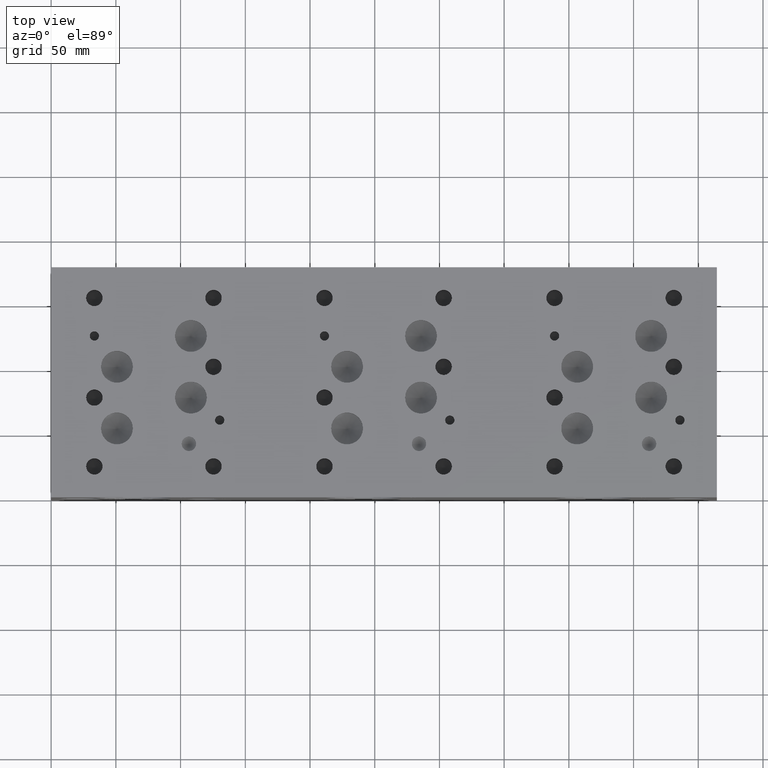
[diagram: clean part render]
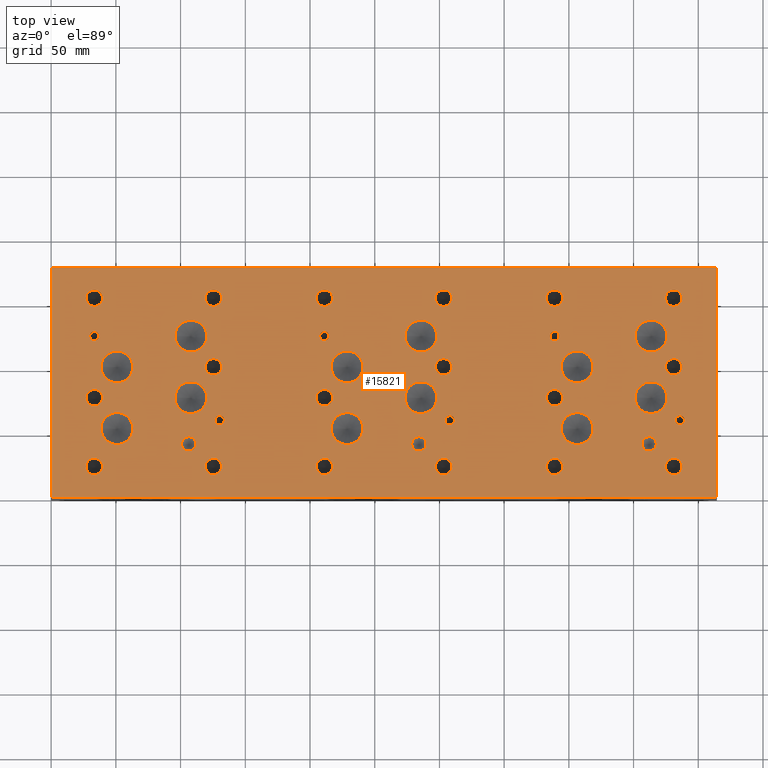
[diagram: same view with one face highlighted and labeled with its STEP entity id]
A machine part, top view. The second image highlights one B-rep face of the part: STEP entity #15821.
In plain terms, the highlighted planar face has unit normal (0, 0, 1).
Its self-contained STEP definition (entity closure, byte-faithful):
#507=CIRCLE('',#16639,3.5687);
#508=CIRCLE('',#16640,3.5687);
#511=CIRCLE('',#16645,3.5687);
#512=CIRCLE('',#16646,3.5687);
#515=CIRCLE('',#16651,3.5687);
#516=CIRCLE('',#16652,3.5687);
#519=CIRCLE('',#16657,3.5687);
#520=CIRCLE('',#16658,3.5687);
#526=CIRCLE('',#16667,6.35);
#527=CIRCLE('',#16668,6.35);
#533=CIRCLE('',#16678,6.35);
#534=CIRCLE('',#16679,6.35);
#540=CIRCLE('',#16689,6.35);
#541=CIRCLE('',#16690,6.35);
#547=CIRCLE('',#16700,6.35);
#548=CIRCLE('',#16701,6.35);
#554=CIRCLE('',#16711,6.35);
#555=CIRCLE('',#16712,6.35);
#561=CIRCLE('',#16722,6.35);
#562=CIRCLE('',#16723,6.35);
#568=CIRCLE('',#16733,6.35);
#569=CIRCLE('',#16734,6.35);
#575=CIRCLE('',#16744,6.35);
#576=CIRCLE('',#16745,6.35);
#582=CIRCLE('',#16755,6.35);
#583=CIRCLE('',#16756,6.35);
#589=CIRCLE('',#16766,6.35);
#590=CIRCLE('',#16767,6.35);
#596=CIRCLE('',#16777,6.35);
#597=CIRCLE('',#16778,6.35);
#603=CIRCLE('',#16788,6.35);
#604=CIRCLE('',#16789,6.35);
#607=CIRCLE('',#16795,5.5626);
#608=CIRCLE('',#16796,5.5626);
#611=CIRCLE('',#16801,5.5626);
#612=CIRCLE('',#16802,5.5626);
#615=CIRCLE('',#16807,5.5626);
#616=CIRCLE('',#16808,5.5626);
#619=CIRCLE('',#16813,12.3063);
#620=CIRCLE('',#16814,12.3063);
#623=CIRCLE('',#16819,12.3063);
#624=CIRCLE('',#16820,12.3063);
#627=CIRCLE('',#16825,12.3063);
#628=CIRCLE('',#16826,12.3063);
#631=CIRCLE('',#16831,12.3063);
#632=CIRCLE('',#16832,12.3063);
#635=CIRCLE('',#16837,12.3063);
#636=CIRCLE('',#16838,12.3063);
#639=CIRCLE('',#16843,12.3063);
#640=CIRCLE('',#16844,12.3063);
#643=CIRCLE('',#16849,12.3063);
#644=CIRCLE('',#16850,12.3063);
#647=CIRCLE('',#16855,12.3063);
#648=CIRCLE('',#16856,12.3063);
#651=CIRCLE('',#16861,12.3063);
#652=CIRCLE('',#16862,12.3063);
#655=CIRCLE('',#16867,12.3063);
#656=CIRCLE('',#16868,12.3063);
#659=CIRCLE('',#16873,12.3063);
#660=CIRCLE('',#16874,12.3063);
#663=CIRCLE('',#16879,12.3063);
#664=CIRCLE('',#16880,12.3063);
#667=CIRCLE('',#16885,3.5687);
#668=CIRCLE('',#16886,3.5687);
#671=CIRCLE('',#16891,3.5687);
#672=CIRCLE('',#16892,3.5687);
#678=CIRCLE('',#16901,6.35);
#679=CIRCLE('',#16902,6.35);
#685=CIRCLE('',#16912,6.35);
#686=CIRCLE('',#16913,6.35);
#692=CIRCLE('',#16923,6.35);
#693=CIRCLE('',#16924,6.35);
#699=CIRCLE('',#16934,6.35);
#700=CIRCLE('',#16935,6.35);
#706=CIRCLE('',#16945,6.35);
#707=CIRCLE('',#16946,6.35);
#713=CIRCLE('',#16956,6.35);
#714=CIRCLE('',#16957,6.35);
#834=FACE_BOUND('',#3070,.T.);
#835=FACE_BOUND('',#3071,.T.);
#836=FACE_BOUND('',#3072,.T.);
#837=FACE_BOUND('',#3073,.T.);
#838=FACE_BOUND('',#3074,.T.);
#839=FACE_BOUND('',#3075,.T.);
#840=FACE_BOUND('',#3076,.T.);
#841=FACE_BOUND('',#3077,.T.);
#842=FACE_BOUND('',#3078,.T.);
#843=FACE_BOUND('',#3079,.T.);
#844=FACE_BOUND('',#3080,.T.);
#845=FACE_BOUND('',#3081,.T.);
#846=FACE_BOUND('',#3082,.T.);
#847=FACE_BOUND('',#3083,.T.);
#848=FACE_BOUND('',#3084,.T.);
#849=FACE_BOUND('',#3085,.T.);
#850=FACE_BOUND('',#3086,.T.);
#851=FACE_BOUND('',#3087,.T.);
#852=FACE_BOUND('',#3088,.T.);
#853=FACE_BOUND('',#3089,.T.);
#854=FACE_BOUND('',#3090,.T.);
#855=FACE_BOUND('',#3091,.T.);
#856=FACE_BOUND('',#3092,.T.);
#857=FACE_BOUND('',#3093,.T.);
#858=FACE_BOUND('',#3094,.T.);
#859=FACE_BOUND('',#3095,.T.);
#860=FACE_BOUND('',#3096,.T.);
#861=FACE_BOUND('',#3097,.T.);
#862=FACE_BOUND('',#3098,.T.);
#863=FACE_BOUND('',#3099,.T.);
#864=FACE_BOUND('',#3100,.T.);
#865=FACE_BOUND('',#3101,.T.);
#866=FACE_BOUND('',#3102,.T.);
#867=FACE_BOUND('',#3103,.T.);
#868=FACE_BOUND('',#3104,.T.);
#869=FACE_BOUND('',#3105,.T.);
#870=FACE_BOUND('',#3106,.T.);
#871=FACE_BOUND('',#3107,.T.);
#872=FACE_BOUND('',#3108,.T.);
#1298=PLANE('',#16963);
#2124=FACE_OUTER_BOUND('',#3069,.T.);
#3069=EDGE_LOOP('',(#14210,#14211,#14212,#14213));
#3070=EDGE_LOOP('',(#14214,#14215));
#3071=EDGE_LOOP('',(#14216,#14217));
#3072=EDGE_LOOP('',(#14218,#14219));
#3073=EDGE_LOOP('',(#14220,#14221));
#3074=EDGE_LOOP('',(#14222,#14223));
#3075=EDGE_LOOP('',(#14224,#14225));
#3076=EDGE_LOOP('',(#14226,#14227));
#3077=EDGE_LOOP('',(#14228,#14229));
#3078=EDGE_LOOP('',(#14230,#14231));
#3079=EDGE_LOOP('',(#14232,#14233));
#3080=EDGE_LOOP('',(#14234,#14235));
#3081=EDGE_LOOP('',(#14236,#14237));
#3082=EDGE_LOOP('',(#14238,#14239));
#3083=EDGE_LOOP('',(#14240,#14241));
#3084=EDGE_LOOP('',(#14242,#14243));
#3085=EDGE_LOOP('',(#14244,#14245));
#3086=EDGE_LOOP('',(#14246,#14247));
#3087=EDGE_LOOP('',(#14248,#14249));
#3088=EDGE_LOOP('',(#14250,#14251));
#3089=EDGE_LOOP('',(#14252,#14253));
#3090=EDGE_LOOP('',(#14254,#14255));
#3091=EDGE_LOOP('',(#14256,#14257));
#3092=EDGE_LOOP('',(#14258,#14259));
#3093=EDGE_LOOP('',(#14260,#14261));
#3094=EDGE_LOOP('',(#14262,#14263));
#3095=EDGE_LOOP('',(#14264,#14265));
#3096=EDGE_LOOP('',(#14266,#14267));
#3097=EDGE_LOOP('',(#14268,#14269));
#3098=EDGE_LOOP('',(#14270,#14271));
#3099=EDGE_LOOP('',(#14272,#14273));
#3100=EDGE_LOOP('',(#14274,#14275));
#3101=EDGE_LOOP('',(#14276,#14277));
#3102=EDGE_LOOP('',(#14278,#14279));
#3103=EDGE_LOOP('',(#14280,#14281));
#3104=EDGE_LOOP('',(#14282,#14283));
#3105=EDGE_LOOP('',(#14284,#14285));
#3106=EDGE_LOOP('',(#14286,#14287));
#3107=EDGE_LOOP('',(#14288,#14289));
#3108=EDGE_LOOP('',(#14290,#14291));
#3144=LINE('',#20800,#4512);
#3204=LINE('',#21075,#4572);
#3520=LINE('',#23330,#4888);
#4477=LINE('',#27393,#5845);
#4512=VECTOR('',#17021,10.);
#4572=VECTOR('',#17135,10.);
#4888=VECTOR('',#17637,10.);
#5845=VECTOR('',#20582,10.);
#6228=VERTEX_POINT('',#20797);
#6229=VERTEX_POINT('',#20799);
#6288=VERTEX_POINT('',#21072);
#6289=VERTEX_POINT('',#21074);
#7474=VERTEX_POINT('',#26729);
#7475=VERTEX_POINT('',#26730);
#7479=VERTEX_POINT('',#26742);
#7480=VERTEX_POINT('',#26743);
#7484=VERTEX_POINT('',#26755);
#7485=VERTEX_POINT('',#26756);
#7489=VERTEX_POINT('',#26768);
#7490=VERTEX_POINT('',#26769);
#7497=VERTEX_POINT('',#26788);
#7498=VERTEX_POINT('',#26789);
#7505=VERTEX_POINT('',#26810);
#7506=VERTEX_POINT('',#26811);
#7513=VERTEX_POINT('',#26832);
#7514=VERTEX_POINT('',#26833);
#7521=VERTEX_POINT('',#26854);
#7522=VERTEX_POINT('',#26855);
#7529=VERTEX_POINT('',#26876);
#7530=VERTEX_POINT('',#26877);
#7537=VERTEX_POINT('',#26898);
#7538=VERTEX_POINT('',#26899);
#7545=VERTEX_POINT('',#26920);
#7546=VERTEX_POINT('',#26921);
#7553=VERTEX_POINT('',#26942);
#7554=VERTEX_POINT('',#26943);
#7561=VERTEX_POINT('',#26964);
#7562=VERTEX_POINT('',#26965);
#7569=VERTEX_POINT('',#26986);
#7570=VERTEX_POINT('',#26987);
#7577=VERTEX_POINT('',#27008);
#7578=VERTEX_POINT('',#27009);
#7585=VERTEX_POINT('',#27030);
#7586=VERTEX_POINT('',#27031);
#7590=VERTEX_POINT('',#27045);
#7591=VERTEX_POINT('',#27046);
#7595=VERTEX_POINT('',#27058);
#7596=VERTEX_POINT('',#27059);
#7600=VERTEX_POINT('',#27071);
#7601=VERTEX_POINT('',#27072);
#7605=VERTEX_POINT('',#27084);
#7606=VERTEX_POINT('',#27085);
#7610=VERTEX_POINT('',#27097);
#7611=VERTEX_POINT('',#27098);
#7615=VERTEX_POINT('',#27110);
#7616=VERTEX_POINT('',#27111);
#7620=VERTEX_POINT('',#27123);
#7621=VERTEX_POINT('',#27124);
#7625=VERTEX_POINT('',#27136);
#7626=VERTEX_POINT('',#27137);
#7630=VERTEX_POINT('',#27149);
#7631=VERTEX_POINT('',#27150);
#7635=VERTEX_POINT('',#27162);
#7636=VERTEX_POINT('',#27163);
#7640=VERTEX_POINT('',#27175);
#7641=VERTEX_POINT('',#27176);
#7645=VERTEX_POINT('',#27188);
#7646=VERTEX_POINT('',#27189);
#7650=VERTEX_POINT('',#27201);
#7651=VERTEX_POINT('',#27202);
#7655=VERTEX_POINT('',#27214);
#7656=VERTEX_POINT('',#27215);
#7660=VERTEX_POINT('',#27227);
#7661=VERTEX_POINT('',#27228);
#7665=VERTEX_POINT('',#27240);
#7666=VERTEX_POINT('',#27241);
#7670=VERTEX_POINT('',#27253);
#7671=VERTEX_POINT('',#27254);
#7678=VERTEX_POINT('',#27273);
#7679=VERTEX_POINT('',#27274);
#7686=VERTEX_POINT('',#27295);
#7687=VERTEX_POINT('',#27296);
#7694=VERTEX_POINT('',#27317);
#7695=VERTEX_POINT('',#27318);
#7702=VERTEX_POINT('',#27339);
#7703=VERTEX_POINT('',#27340);
#7710=VERTEX_POINT('',#27361);
#7711=VERTEX_POINT('',#27362);
#7718=VERTEX_POINT('',#27383);
#7719=VERTEX_POINT('',#27384);
#7770=EDGE_CURVE('',#6229,#6228,#3144,.T.);
#7854=EDGE_CURVE('',#6289,#6288,#3204,.T.);
#8366=EDGE_CURVE('',#6288,#6229,#3520,.T.);
#9607=EDGE_CURVE('',#7474,#7475,#507,.T.);
#9608=EDGE_CURVE('',#7475,#7474,#508,.T.);
#9613=EDGE_CURVE('',#7479,#7480,#511,.T.);
#9614=EDGE_CURVE('',#7480,#7479,#512,.T.);
#9619=EDGE_CURVE('',#7484,#7485,#515,.T.);
#9620=EDGE_CURVE('',#7485,#7484,#516,.T.);
#9625=EDGE_CURVE('',#7489,#7490,#519,.T.);
#9626=EDGE_CURVE('',#7490,#7489,#520,.T.);
#9634=EDGE_CURVE('',#7497,#7498,#526,.T.);
#9635=EDGE_CURVE('',#7498,#7497,#527,.T.);
#9644=EDGE_CURVE('',#7505,#7506,#533,.T.);
#9645=EDGE_CURVE('',#7506,#7505,#534,.T.);
#9654=EDGE_CURVE('',#7513,#7514,#540,.T.);
#9655=EDGE_CURVE('',#7514,#7513,#541,.T.);
#9664=EDGE_CURVE('',#7521,#7522,#547,.T.);
#9665=EDGE_CURVE('',#7522,#7521,#548,.T.);
#9674=EDGE_CURVE('',#7529,#7530,#554,.T.);
#9675=EDGE_CURVE('',#7530,#7529,#555,.T.);
#9684=EDGE_CURVE('',#7537,#7538,#561,.T.);
#9685=EDGE_CURVE('',#7538,#7537,#562,.T.);
#9694=EDGE_CURVE('',#7545,#7546,#568,.T.);
#9695=EDGE_CURVE('',#7546,#7545,#569,.T.);
#9704=EDGE_CURVE('',#7553,#7554,#575,.T.);
#9705=EDGE_CURVE('',#7554,#7553,#576,.T.);
#9714=EDGE_CURVE('',#7561,#7562,#582,.T.);
#9715=EDGE_CURVE('',#7562,#7561,#583,.T.);
#9724=EDGE_CURVE('',#7569,#7570,#589,.T.);
#9725=EDGE_CURVE('',#7570,#7569,#590,.T.);
#9734=EDGE_CURVE('',#7577,#7578,#596,.T.);
#9735=EDGE_CURVE('',#7578,#7577,#597,.T.);
#9744=EDGE_CURVE('',#7585,#7586,#603,.T.);
#9745=EDGE_CURVE('',#7586,#7585,#604,.T.);
#9751=EDGE_CURVE('',#7590,#7591,#607,.T.);
#9752=EDGE_CURVE('',#7591,#7590,#608,.T.);
#9757=EDGE_CURVE('',#7595,#7596,#611,.T.);
#9758=EDGE_CURVE('',#7596,#7595,#612,.T.);
#9763=EDGE_CURVE('',#7600,#7601,#615,.T.);
#9764=EDGE_CURVE('',#7601,#7600,#616,.T.);
#9769=EDGE_CURVE('',#7605,#7606,#619,.T.);
#9770=EDGE_CURVE('',#7606,#7605,#620,.T.);
#9775=EDGE_CURVE('',#7610,#7611,#623,.T.);
#9776=EDGE_CURVE('',#7611,#7610,#624,.T.);
#9781=EDGE_CURVE('',#7615,#7616,#627,.T.);
#9782=EDGE_CURVE('',#7616,#7615,#628,.T.);
#9787=EDGE_CURVE('',#7620,#7621,#631,.T.);
#9788=EDGE_CURVE('',#7621,#7620,#632,.T.);
#9793=EDGE_CURVE('',#7625,#7626,#635,.T.);
#9794=EDGE_CURVE('',#7626,#7625,#636,.T.);
#9799=EDGE_CURVE('',#7630,#7631,#639,.T.);
#9800=EDGE_CURVE('',#7631,#7630,#640,.T.);
#9805=EDGE_CURVE('',#7635,#7636,#643,.T.);
#9806=EDGE_CURVE('',#7636,#7635,#644,.T.);
#9811=EDGE_CURVE('',#7640,#7641,#647,.T.);
#9812=EDGE_CURVE('',#7641,#7640,#648,.T.);
#9817=EDGE_CURVE('',#7645,#7646,#651,.T.);
#9818=EDGE_CURVE('',#7646,#7645,#652,.T.);
#9823=EDGE_CURVE('',#7650,#7651,#655,.T.);
#9824=EDGE_CURVE('',#7651,#7650,#656,.T.);
#9829=EDGE_CURVE('',#7655,#7656,#659,.T.);
#9830=EDGE_CURVE('',#7656,#7655,#660,.T.);
#9835=EDGE_CURVE('',#7660,#7661,#663,.T.);
#9836=EDGE_CURVE('',#7661,#7660,#664,.T.);
#9841=EDGE_CURVE('',#7665,#7666,#667,.T.);
#9842=EDGE_CURVE('',#7666,#7665,#668,.T.);
#9847=EDGE_CURVE('',#7670,#7671,#671,.T.);
#9848=EDGE_CURVE('',#7671,#7670,#672,.T.);
#9856=EDGE_CURVE('',#7678,#7679,#678,.T.);
#9857=EDGE_CURVE('',#7679,#7678,#679,.T.);
#9866=EDGE_CURVE('',#7686,#7687,#685,.T.);
#9867=EDGE_CURVE('',#7687,#7686,#686,.T.);
#9876=EDGE_CURVE('',#7694,#7695,#692,.T.);
#9877=EDGE_CURVE('',#7695,#7694,#693,.T.);
#9886=EDGE_CURVE('',#7702,#7703,#699,.T.);
#9887=EDGE_CURVE('',#7703,#7702,#700,.T.);
#9896=EDGE_CURVE('',#7710,#7711,#706,.T.);
#9897=EDGE_CURVE('',#7711,#7710,#707,.T.);
#9906=EDGE_CURVE('',#7718,#7719,#713,.T.);
#9907=EDGE_CURVE('',#7719,#7718,#714,.T.);
#9911=EDGE_CURVE('',#6228,#6289,#4477,.T.);
#14210=ORIENTED_EDGE('',*,*,#8366,.T.);
#14211=ORIENTED_EDGE('',*,*,#7770,.T.);
#14212=ORIENTED_EDGE('',*,*,#9911,.T.);
#14213=ORIENTED_EDGE('',*,*,#7854,.T.);
#14214=ORIENTED_EDGE('',*,*,#9607,.T.);
#14215=ORIENTED_EDGE('',*,*,#9608,.T.);
#14216=ORIENTED_EDGE('',*,*,#9613,.T.);
#14217=ORIENTED_EDGE('',*,*,#9614,.T.);
#14218=ORIENTED_EDGE('',*,*,#9619,.T.);
#14219=ORIENTED_EDGE('',*,*,#9620,.T.);
#14220=ORIENTED_EDGE('',*,*,#9625,.T.);
#14221=ORIENTED_EDGE('',*,*,#9626,.T.);
#14222=ORIENTED_EDGE('',*,*,#9634,.T.);
#14223=ORIENTED_EDGE('',*,*,#9635,.T.);
#14224=ORIENTED_EDGE('',*,*,#9644,.T.);
#14225=ORIENTED_EDGE('',*,*,#9645,.T.);
#14226=ORIENTED_EDGE('',*,*,#9654,.T.);
#14227=ORIENTED_EDGE('',*,*,#9655,.T.);
#14228=ORIENTED_EDGE('',*,*,#9664,.T.);
#14229=ORIENTED_EDGE('',*,*,#9665,.T.);
#14230=ORIENTED_EDGE('',*,*,#9674,.T.);
#14231=ORIENTED_EDGE('',*,*,#9675,.T.);
#14232=ORIENTED_EDGE('',*,*,#9684,.T.);
#14233=ORIENTED_EDGE('',*,*,#9685,.T.);
#14234=ORIENTED_EDGE('',*,*,#9694,.T.);
#14235=ORIENTED_EDGE('',*,*,#9695,.T.);
#14236=ORIENTED_EDGE('',*,*,#9704,.T.);
#14237=ORIENTED_EDGE('',*,*,#9705,.T.);
#14238=ORIENTED_EDGE('',*,*,#9714,.T.);
#14239=ORIENTED_EDGE('',*,*,#9715,.T.);
#14240=ORIENTED_EDGE('',*,*,#9724,.T.);
#14241=ORIENTED_EDGE('',*,*,#9725,.T.);
#14242=ORIENTED_EDGE('',*,*,#9734,.T.);
#14243=ORIENTED_EDGE('',*,*,#9735,.T.);
#14244=ORIENTED_EDGE('',*,*,#9744,.T.);
#14245=ORIENTED_EDGE('',*,*,#9745,.T.);
#14246=ORIENTED_EDGE('',*,*,#9751,.T.);
#14247=ORIENTED_EDGE('',*,*,#9752,.T.);
#14248=ORIENTED_EDGE('',*,*,#9757,.T.);
#14249=ORIENTED_EDGE('',*,*,#9758,.T.);
#14250=ORIENTED_EDGE('',*,*,#9763,.T.);
#14251=ORIENTED_EDGE('',*,*,#9764,.T.);
#14252=ORIENTED_EDGE('',*,*,#9769,.T.);
#14253=ORIENTED_EDGE('',*,*,#9770,.T.);
#14254=ORIENTED_EDGE('',*,*,#9775,.T.);
#14255=ORIENTED_EDGE('',*,*,#9776,.T.);
#14256=ORIENTED_EDGE('',*,*,#9781,.T.);
#14257=ORIENTED_EDGE('',*,*,#9782,.T.);
#14258=ORIENTED_EDGE('',*,*,#9787,.T.);
#14259=ORIENTED_EDGE('',*,*,#9788,.T.);
#14260=ORIENTED_EDGE('',*,*,#9793,.T.);
#14261=ORIENTED_EDGE('',*,*,#9794,.T.);
#14262=ORIENTED_EDGE('',*,*,#9799,.T.);
#14263=ORIENTED_EDGE('',*,*,#9800,.T.);
#14264=ORIENTED_EDGE('',*,*,#9805,.T.);
#14265=ORIENTED_EDGE('',*,*,#9806,.T.);
#14266=ORIENTED_EDGE('',*,*,#9811,.T.);
#14267=ORIENTED_EDGE('',*,*,#9812,.T.);
#14268=ORIENTED_EDGE('',*,*,#9817,.T.);
#14269=ORIENTED_EDGE('',*,*,#9818,.T.);
#14270=ORIENTED_EDGE('',*,*,#9823,.T.);
#14271=ORIENTED_EDGE('',*,*,#9824,.T.);
#14272=ORIENTED_EDGE('',*,*,#9829,.T.);
#14273=ORIENTED_EDGE('',*,*,#9830,.T.);
#14274=ORIENTED_EDGE('',*,*,#9835,.T.);
#14275=ORIENTED_EDGE('',*,*,#9836,.T.);
#14276=ORIENTED_EDGE('',*,*,#9841,.T.);
#14277=ORIENTED_EDGE('',*,*,#9842,.T.);
#14278=ORIENTED_EDGE('',*,*,#9847,.T.);
#14279=ORIENTED_EDGE('',*,*,#9848,.T.);
#14280=ORIENTED_EDGE('',*,*,#9856,.T.);
#14281=ORIENTED_EDGE('',*,*,#9857,.T.);
#14282=ORIENTED_EDGE('',*,*,#9866,.T.);
#14283=ORIENTED_EDGE('',*,*,#9867,.T.);
#14284=ORIENTED_EDGE('',*,*,#9876,.T.);
#14285=ORIENTED_EDGE('',*,*,#9877,.T.);
#14286=ORIENTED_EDGE('',*,*,#9886,.T.);
#14287=ORIENTED_EDGE('',*,*,#9887,.T.);
#14288=ORIENTED_EDGE('',*,*,#9896,.T.);
#14289=ORIENTED_EDGE('',*,*,#9897,.T.);
#14290=ORIENTED_EDGE('',*,*,#9906,.T.);
#14291=ORIENTED_EDGE('',*,*,#9907,.T.);
#15821=ADVANCED_FACE('',(#2124,#834,#835,#836,#837,#838,#839,#840,#841,
#842,#843,#844,#845,#846,#847,#848,#849,#850,#851,#852,#853,#854,#855,#856,
#857,#858,#859,#860,#861,#862,#863,#864,#865,#866,#867,#868,#869,#870,#871,
#872),#1298,.T.);
#16639=AXIS2_PLACEMENT_3D('',#26731,#19842,#19843);
#16640=AXIS2_PLACEMENT_3D('',#26732,#19844,#19845);
#16645=AXIS2_PLACEMENT_3D('',#26744,#19856,#19857);
#16646=AXIS2_PLACEMENT_3D('',#26745,#19858,#19859);
#16651=AXIS2_PLACEMENT_3D('',#26757,#19870,#19871);
#16652=AXIS2_PLACEMENT_3D('',#26758,#19872,#19873);
#16657=AXIS2_PLACEMENT_3D('',#26770,#19884,#19885);
#16658=AXIS2_PLACEMENT_3D('',#26771,#19886,#19887);
#16667=AXIS2_PLACEMENT_3D('',#26790,#19906,#19907);
#16668=AXIS2_PLACEMENT_3D('',#26791,#19908,#19909);
#16678=AXIS2_PLACEMENT_3D('',#26812,#19931,#19932);
#16679=AXIS2_PLACEMENT_3D('',#26813,#19933,#19934);
#16689=AXIS2_PLACEMENT_3D('',#26834,#19956,#19957);
#16690=AXIS2_PLACEMENT_3D('',#26835,#19958,#19959);
#16700=AXIS2_PLACEMENT_3D('',#26856,#19981,#19982);
#16701=AXIS2_PLACEMENT_3D('',#26857,#19983,#19984);
#16711=AXIS2_PLACEMENT_3D('',#26878,#20006,#20007);
#16712=AXIS2_PLACEMENT_3D('',#26879,#20008,#20009);
#16722=AXIS2_PLACEMENT_3D('',#26900,#20031,#20032);
#16723=AXIS2_PLACEMENT_3D('',#26901,#20033,#20034);
#16733=AXIS2_PLACEMENT_3D('',#26922,#20056,#20057);
#16734=AXIS2_PLACEMENT_3D('',#26923,#20058,#20059);
#16744=AXIS2_PLACEMENT_3D('',#26944,#20081,#20082);
#16745=AXIS2_PLACEMENT_3D('',#26945,#20083,#20084);
#16755=AXIS2_PLACEMENT_3D('',#26966,#20106,#20107);
#16756=AXIS2_PLACEMENT_3D('',#26967,#20108,#20109);
#16766=AXIS2_PLACEMENT_3D('',#26988,#20131,#20132);
#16767=AXIS2_PLACEMENT_3D('',#26989,#20133,#20134);
#16777=AXIS2_PLACEMENT_3D('',#27010,#20156,#20157);
#16778=AXIS2_PLACEMENT_3D('',#27011,#20158,#20159);
#16788=AXIS2_PLACEMENT_3D('',#27032,#20181,#20182);
#16789=AXIS2_PLACEMENT_3D('',#27033,#20183,#20184);
#16795=AXIS2_PLACEMENT_3D('',#27047,#20198,#20199);
#16796=AXIS2_PLACEMENT_3D('',#27048,#20200,#20201);
#16801=AXIS2_PLACEMENT_3D('',#27060,#20212,#20213);
#16802=AXIS2_PLACEMENT_3D('',#27061,#20214,#20215);
#16807=AXIS2_PLACEMENT_3D('',#27073,#20226,#20227);
#16808=AXIS2_PLACEMENT_3D('',#27074,#20228,#20229);
#16813=AXIS2_PLACEMENT_3D('',#27086,#20240,#20241);
#16814=AXIS2_PLACEMENT_3D('',#27087,#20242,#20243);
#16819=AXIS2_PLACEMENT_3D('',#27099,#20254,#20255);
#16820=AXIS2_PLACEMENT_3D('',#27100,#20256,#20257);
#16825=AXIS2_PLACEMENT_3D('',#27112,#20268,#20269);
#16826=AXIS2_PLACEMENT_3D('',#27113,#20270,#20271);
#16831=AXIS2_PLACEMENT_3D('',#27125,#20282,#20283);
#16832=AXIS2_PLACEMENT_3D('',#27126,#20284,#20285);
#16837=AXIS2_PLACEMENT_3D('',#27138,#20296,#20297);
#16838=AXIS2_PLACEMENT_3D('',#27139,#20298,#20299);
#16843=AXIS2_PLACEMENT_3D('',#27151,#20310,#20311);
#16844=AXIS2_PLACEMENT_3D('',#27152,#20312,#20313);
#16849=AXIS2_PLACEMENT_3D('',#27164,#20324,#20325);
#16850=AXIS2_PLACEMENT_3D('',#27165,#20326,#20327);
#16855=AXIS2_PLACEMENT_3D('',#27177,#20338,#20339);
#16856=AXIS2_PLACEMENT_3D('',#27178,#20340,#20341);
#16861=AXIS2_PLACEMENT_3D('',#27190,#20352,#20353);
#16862=AXIS2_PLACEMENT_3D('',#27191,#20354,#20355);
#16867=AXIS2_PLACEMENT_3D('',#27203,#20366,#20367);
#16868=AXIS2_PLACEMENT_3D('',#27204,#20368,#20369);
#16873=AXIS2_PLACEMENT_3D('',#27216,#20380,#20381);
#16874=AXIS2_PLACEMENT_3D('',#27217,#20382,#20383);
#16879=AXIS2_PLACEMENT_3D('',#27229,#20394,#20395);
#16880=AXIS2_PLACEMENT_3D('',#27230,#20396,#20397);
#16885=AXIS2_PLACEMENT_3D('',#27242,#20408,#20409);
#16886=AXIS2_PLACEMENT_3D('',#27243,#20410,#20411);
#16891=AXIS2_PLACEMENT_3D('',#27255,#20422,#20423);
#16892=AXIS2_PLACEMENT_3D('',#27256,#20424,#20425);
#16901=AXIS2_PLACEMENT_3D('',#27275,#20444,#20445);
#16902=AXIS2_PLACEMENT_3D('',#27276,#20446,#20447);
#16912=AXIS2_PLACEMENT_3D('',#27297,#20469,#20470);
#16913=AXIS2_PLACEMENT_3D('',#27298,#20471,#20472);
#16923=AXIS2_PLACEMENT_3D('',#27319,#20494,#20495);
#16924=AXIS2_PLACEMENT_3D('',#27320,#20496,#20497);
#16934=AXIS2_PLACEMENT_3D('',#27341,#20519,#20520);
#16935=AXIS2_PLACEMENT_3D('',#27342,#20521,#20522);
#16945=AXIS2_PLACEMENT_3D('',#27363,#20544,#20545);
#16946=AXIS2_PLACEMENT_3D('',#27364,#20546,#20547);
#16956=AXIS2_PLACEMENT_3D('',#27385,#20569,#20570);
#16957=AXIS2_PLACEMENT_3D('',#27386,#20571,#20572);
#16963=AXIS2_PLACEMENT_3D('',#27396,#20587,#20588);
#17021=DIRECTION('',(0.,1.,0.));
#17135=DIRECTION('',(0.,-1.,0.));
#17637=DIRECTION('',(1.,0.,0.));
#19842=DIRECTION('center_axis',(0.,0.,-1.));
#19843=DIRECTION('ref_axis',(1.,0.,0.));
#19844=DIRECTION('center_axis',(0.,0.,-1.));
#19845=DIRECTION('ref_axis',(1.,0.,0.));
#19856=DIRECTION('center_axis',(0.,0.,-1.));
#19857=DIRECTION('ref_axis',(1.,0.,0.));
#19858=DIRECTION('center_axis',(0.,0.,-1.));
#19859=DIRECTION('ref_axis',(1.,0.,0.));
#19870=DIRECTION('center_axis',(0.,0.,-1.));
#19871=DIRECTION('ref_axis',(1.,0.,0.));
#19872=DIRECTION('center_axis',(0.,0.,-1.));
#19873=DIRECTION('ref_axis',(1.,0.,0.));
#19884=DIRECTION('center_axis',(0.,0.,-1.));
#19885=DIRECTION('ref_axis',(1.,0.,0.));
#19886=DIRECTION('center_axis',(0.,0.,-1.));
#19887=DIRECTION('ref_axis',(1.,0.,0.));
#19906=DIRECTION('center_axis',(0.,0.,-1.));
#19907=DIRECTION('ref_axis',(1.,0.,0.));
#19908=DIRECTION('center_axis',(0.,0.,-1.));
#19909=DIRECTION('ref_axis',(1.,0.,0.));
#19931=DIRECTION('center_axis',(0.,0.,-1.));
#19932=DIRECTION('ref_axis',(1.,0.,0.));
#19933=DIRECTION('center_axis',(0.,0.,-1.));
#19934=DIRECTION('ref_axis',(1.,0.,0.));
#19956=DIRECTION('center_axis',(0.,0.,-1.));
#19957=DIRECTION('ref_axis',(1.,0.,0.));
#19958=DIRECTION('center_axis',(0.,0.,-1.));
#19959=DIRECTION('ref_axis',(1.,0.,0.));
#19981=DIRECTION('center_axis',(0.,0.,-1.));
#19982=DIRECTION('ref_axis',(1.,0.,0.));
#19983=DIRECTION('center_axis',(0.,0.,-1.));
#19984=DIRECTION('ref_axis',(1.,0.,0.));
#20006=DIRECTION('center_axis',(0.,0.,-1.));
#20007=DIRECTION('ref_axis',(1.,0.,0.));
#20008=DIRECTION('center_axis',(0.,0.,-1.));
#20009=DIRECTION('ref_axis',(1.,0.,0.));
#20031=DIRECTION('center_axis',(0.,0.,-1.));
#20032=DIRECTION('ref_axis',(1.,0.,0.));
#20033=DIRECTION('center_axis',(0.,0.,-1.));
#20034=DIRECTION('ref_axis',(1.,0.,0.));
#20056=DIRECTION('center_axis',(0.,0.,-1.));
#20057=DIRECTION('ref_axis',(1.,0.,0.));
#20058=DIRECTION('center_axis',(0.,0.,-1.));
#20059=DIRECTION('ref_axis',(1.,0.,0.));
#20081=DIRECTION('center_axis',(0.,0.,-1.));
#20082=DIRECTION('ref_axis',(1.,0.,0.));
#20083=DIRECTION('center_axis',(0.,0.,-1.));
#20084=DIRECTION('ref_axis',(1.,0.,0.));
#20106=DIRECTION('center_axis',(0.,0.,-1.));
#20107=DIRECTION('ref_axis',(1.,0.,0.));
#20108=DIRECTION('center_axis',(0.,0.,-1.));
#20109=DIRECTION('ref_axis',(1.,0.,0.));
#20131=DIRECTION('center_axis',(0.,0.,-1.));
#20132=DIRECTION('ref_axis',(1.,0.,0.));
#20133=DIRECTION('center_axis',(0.,0.,-1.));
#20134=DIRECTION('ref_axis',(1.,0.,0.));
#20156=DIRECTION('center_axis',(0.,0.,-1.));
#20157=DIRECTION('ref_axis',(1.,0.,0.));
#20158=DIRECTION('center_axis',(0.,0.,-1.));
#20159=DIRECTION('ref_axis',(1.,0.,0.));
#20181=DIRECTION('center_axis',(0.,0.,-1.));
#20182=DIRECTION('ref_axis',(1.,0.,0.));
#20183=DIRECTION('center_axis',(0.,0.,-1.));
#20184=DIRECTION('ref_axis',(1.,0.,0.));
#20198=DIRECTION('center_axis',(0.,0.,-1.));
#20199=DIRECTION('ref_axis',(1.,0.,0.));
#20200=DIRECTION('center_axis',(0.,0.,-1.));
#20201=DIRECTION('ref_axis',(1.,0.,0.));
#20212=DIRECTION('center_axis',(0.,0.,-1.));
#20213=DIRECTION('ref_axis',(1.,0.,0.));
#20214=DIRECTION('center_axis',(0.,0.,-1.));
#20215=DIRECTION('ref_axis',(1.,0.,0.));
#20226=DIRECTION('center_axis',(0.,0.,-1.));
#20227=DIRECTION('ref_axis',(1.,0.,0.));
#20228=DIRECTION('center_axis',(0.,0.,-1.));
#20229=DIRECTION('ref_axis',(1.,0.,0.));
#20240=DIRECTION('center_axis',(0.,0.,-1.));
#20241=DIRECTION('ref_axis',(1.,0.,0.));
#20242=DIRECTION('center_axis',(0.,0.,-1.));
#20243=DIRECTION('ref_axis',(1.,0.,0.));
#20254=DIRECTION('center_axis',(0.,0.,-1.));
#20255=DIRECTION('ref_axis',(1.,0.,0.));
#20256=DIRECTION('center_axis',(0.,0.,-1.));
#20257=DIRECTION('ref_axis',(1.,0.,0.));
#20268=DIRECTION('center_axis',(0.,0.,-1.));
#20269=DIRECTION('ref_axis',(1.,0.,0.));
#20270=DIRECTION('center_axis',(0.,0.,-1.));
#20271=DIRECTION('ref_axis',(1.,0.,0.));
#20282=DIRECTION('center_axis',(0.,0.,-1.));
#20283=DIRECTION('ref_axis',(1.,0.,0.));
#20284=DIRECTION('center_axis',(0.,0.,-1.));
#20285=DIRECTION('ref_axis',(1.,0.,0.));
#20296=DIRECTION('center_axis',(0.,0.,-1.));
#20297=DIRECTION('ref_axis',(1.,0.,0.));
#20298=DIRECTION('center_axis',(0.,0.,-1.));
#20299=DIRECTION('ref_axis',(1.,0.,0.));
#20310=DIRECTION('center_axis',(0.,0.,-1.));
#20311=DIRECTION('ref_axis',(1.,0.,0.));
#20312=DIRECTION('center_axis',(0.,0.,-1.));
#20313=DIRECTION('ref_axis',(1.,0.,0.));
#20324=DIRECTION('center_axis',(0.,0.,-1.));
#20325=DIRECTION('ref_axis',(1.,0.,0.));
#20326=DIRECTION('center_axis',(0.,0.,-1.));
#20327=DIRECTION('ref_axis',(1.,0.,0.));
#20338=DIRECTION('center_axis',(0.,0.,-1.));
#20339=DIRECTION('ref_axis',(1.,0.,0.));
#20340=DIRECTION('center_axis',(0.,0.,-1.));
#20341=DIRECTION('ref_axis',(1.,0.,0.));
#20352=DIRECTION('center_axis',(0.,0.,-1.));
#20353=DIRECTION('ref_axis',(1.,0.,0.));
#20354=DIRECTION('center_axis',(0.,0.,-1.));
#20355=DIRECTION('ref_axis',(1.,0.,0.));
#20366=DIRECTION('center_axis',(0.,0.,-1.));
#20367=DIRECTION('ref_axis',(1.,0.,0.));
#20368=DIRECTION('center_axis',(0.,0.,-1.));
#20369=DIRECTION('ref_axis',(1.,0.,0.));
#20380=DIRECTION('center_axis',(0.,0.,-1.));
#20381=DIRECTION('ref_axis',(1.,0.,0.));
#20382=DIRECTION('center_axis',(0.,0.,-1.));
#20383=DIRECTION('ref_axis',(1.,0.,0.));
#20394=DIRECTION('center_axis',(0.,0.,-1.));
#20395=DIRECTION('ref_axis',(1.,0.,0.));
#20396=DIRECTION('center_axis',(0.,0.,-1.));
#20397=DIRECTION('ref_axis',(1.,0.,0.));
#20408=DIRECTION('center_axis',(0.,0.,-1.));
#20409=DIRECTION('ref_axis',(1.,0.,0.));
#20410=DIRECTION('center_axis',(0.,0.,-1.));
#20411=DIRECTION('ref_axis',(1.,0.,0.));
#20422=DIRECTION('center_axis',(0.,0.,-1.));
#20423=DIRECTION('ref_axis',(1.,0.,0.));
#20424=DIRECTION('center_axis',(0.,0.,-1.));
#20425=DIRECTION('ref_axis',(1.,0.,0.));
#20444=DIRECTION('center_axis',(0.,0.,-1.));
#20445=DIRECTION('ref_axis',(1.,0.,0.));
#20446=DIRECTION('center_axis',(0.,0.,-1.));
#20447=DIRECTION('ref_axis',(1.,0.,0.));
#20469=DIRECTION('center_axis',(0.,0.,-1.));
#20470=DIRECTION('ref_axis',(1.,0.,0.));
#20471=DIRECTION('center_axis',(0.,0.,-1.));
#20472=DIRECTION('ref_axis',(1.,0.,0.));
#20494=DIRECTION('center_axis',(0.,0.,-1.));
#20495=DIRECTION('ref_axis',(1.,0.,0.));
#20496=DIRECTION('center_axis',(0.,0.,-1.));
#20497=DIRECTION('ref_axis',(1.,0.,0.));
#20519=DIRECTION('center_axis',(0.,0.,-1.));
#20520=DIRECTION('ref_axis',(1.,0.,0.));
#20521=DIRECTION('center_axis',(0.,0.,-1.));
#20522=DIRECTION('ref_axis',(1.,0.,0.));
#20544=DIRECTION('center_axis',(0.,0.,-1.));
#20545=DIRECTION('ref_axis',(1.,0.,0.));
#20546=DIRECTION('center_axis',(0.,0.,-1.));
#20547=DIRECTION('ref_axis',(1.,0.,0.));
#20569=DIRECTION('center_axis',(0.,0.,-1.));
#20570=DIRECTION('ref_axis',(1.,0.,0.));
#20571=DIRECTION('center_axis',(0.,0.,-1.));
#20572=DIRECTION('ref_axis',(1.,0.,0.));
#20582=DIRECTION('',(-1.,0.,0.));
#20587=DIRECTION('center_axis',(0.,0.,1.));
#20588=DIRECTION('ref_axis',(1.,0.,0.));
#20797=CARTESIAN_POINT('',(514.35,177.8,152.4));
#20799=CARTESIAN_POINT('',(514.35,0.,152.4));
#20800=CARTESIAN_POINT('',(514.35,0.,152.4));
#21072=CARTESIAN_POINT('',(0.,0.,152.4));
#21074=CARTESIAN_POINT('',(0.,177.8,152.4));
#21075=CARTESIAN_POINT('',(0.,177.8,152.4));
#23330=CARTESIAN_POINT('',(0.,0.,152.4));
#26729=CARTESIAN_POINT('',(392.4935,124.6124,152.4));
#26730=CARTESIAN_POINT('',(385.3561,124.6124,152.4));
#26731=CARTESIAN_POINT('Origin',(388.9248,124.6124,152.4));
#26732=CARTESIAN_POINT('Origin',(388.9248,124.6124,152.4));
#26742=CARTESIAN_POINT('',(214.6935,124.6124,152.4));
#26743=CARTESIAN_POINT('',(207.5561,124.6124,152.4));
#26744=CARTESIAN_POINT('Origin',(211.1248,124.6124,152.4));
#26745=CARTESIAN_POINT('Origin',(211.1248,124.6124,152.4));
#26755=CARTESIAN_POINT('',(311.5437,59.5376,152.4));
#26756=CARTESIAN_POINT('',(304.4063,59.5376,152.4));
#26757=CARTESIAN_POINT('Origin',(307.975,59.5376,152.4));
#26758=CARTESIAN_POINT('Origin',(307.975,59.5376,152.4));
#26768=CARTESIAN_POINT('',(489.3437,59.5376,152.4));
#26769=CARTESIAN_POINT('',(482.2063,59.5376,152.4));
#26770=CARTESIAN_POINT('Origin',(485.775,59.5376,152.4));
#26771=CARTESIAN_POINT('Origin',(485.775,59.5376,152.4));
#26788=CARTESIAN_POINT('',(395.3002,23.7998,152.4));
#26789=CARTESIAN_POINT('',(382.6002,23.7998,152.4));
#26790=CARTESIAN_POINT('Origin',(388.9502,23.7998,152.4));
#26791=CARTESIAN_POINT('Origin',(388.9502,23.7998,152.4));
#26810=CARTESIAN_POINT('',(487.3752,100.8126,152.4));
#26811=CARTESIAN_POINT('',(474.6752,100.8126,152.4));
#26812=CARTESIAN_POINT('Origin',(481.0252,100.8126,152.4));
#26813=CARTESIAN_POINT('Origin',(481.0252,100.8126,152.4));
#26832=CARTESIAN_POINT('',(395.2748,153.9748,152.4));
#26833=CARTESIAN_POINT('',(382.5748,153.9748,152.4));
#26834=CARTESIAN_POINT('Origin',(388.9248,153.9748,152.4));
#26835=CARTESIAN_POINT('Origin',(388.9248,153.9748,152.4));
#26854=CARTESIAN_POINT('',(217.5002,23.7998,152.4));
#26855=CARTESIAN_POINT('',(204.8002,23.7998,152.4));
#26856=CARTESIAN_POINT('Origin',(211.1502,23.7998,152.4));
#26857=CARTESIAN_POINT('Origin',(211.1502,23.7998,152.4));
#26876=CARTESIAN_POINT('',(309.5752,100.8126,152.4));
#26877=CARTESIAN_POINT('',(296.8752,100.8126,152.4));
#26878=CARTESIAN_POINT('Origin',(303.2252,100.8126,152.4));
#26879=CARTESIAN_POINT('Origin',(303.2252,100.8126,152.4));
#26898=CARTESIAN_POINT('',(217.4748,153.9748,152.4));
#26899=CARTESIAN_POINT('',(204.7748,153.9748,152.4));
#26900=CARTESIAN_POINT('Origin',(211.1248,153.9748,152.4));
#26901=CARTESIAN_POINT('Origin',(211.1248,153.9748,152.4));
#26920=CARTESIAN_POINT('',(309.5752,153.9748,152.4));
#26921=CARTESIAN_POINT('',(296.8752,153.9748,152.4));
#26922=CARTESIAN_POINT('Origin',(303.2252,153.9748,152.4));
#26923=CARTESIAN_POINT('Origin',(303.2252,153.9748,152.4));
#26942=CARTESIAN_POINT('',(309.5752,23.7998,152.4));
#26943=CARTESIAN_POINT('',(296.8752,23.7998,152.4));
#26944=CARTESIAN_POINT('Origin',(303.2252,23.7998,152.4));
#26945=CARTESIAN_POINT('Origin',(303.2252,23.7998,152.4));
#26964=CARTESIAN_POINT('',(217.5002,76.9874,152.4));
#26965=CARTESIAN_POINT('',(204.8002,76.9874,152.4));
#26966=CARTESIAN_POINT('Origin',(211.1502,76.9874,152.4));
#26967=CARTESIAN_POINT('Origin',(211.1502,76.9874,152.4));
#26986=CARTESIAN_POINT('',(487.3752,153.9748,152.4));
#26987=CARTESIAN_POINT('',(474.6752,153.9748,152.4));
#26988=CARTESIAN_POINT('Origin',(481.0252,153.9748,152.4));
#26989=CARTESIAN_POINT('Origin',(481.0252,153.9748,152.4));
#27008=CARTESIAN_POINT('',(487.3752,23.7998,152.4));
#27009=CARTESIAN_POINT('',(474.6752,23.7998,152.4));
#27010=CARTESIAN_POINT('Origin',(481.0252,23.7998,152.4));
#27011=CARTESIAN_POINT('Origin',(481.0252,23.7998,152.4));
#27030=CARTESIAN_POINT('',(395.3002,76.9874,152.4));
#27031=CARTESIAN_POINT('',(382.6002,76.9874,152.4));
#27032=CARTESIAN_POINT('Origin',(388.9502,76.9874,152.4));
#27033=CARTESIAN_POINT('Origin',(388.9502,76.9874,152.4));
#27045=CARTESIAN_POINT('',(289.7378,41.275,152.4));
#27046=CARTESIAN_POINT('',(278.6126,41.275,152.4));
#27047=CARTESIAN_POINT('Origin',(284.1752,41.275,152.4));
#27048=CARTESIAN_POINT('Origin',(284.1752,41.275,152.4));
#27058=CARTESIAN_POINT('',(111.9251,41.26992,152.4));
#27059=CARTESIAN_POINT('',(100.7999,41.26992,152.4));
#27060=CARTESIAN_POINT('Origin',(106.3625,41.26992,152.4));
#27061=CARTESIAN_POINT('Origin',(106.3625,41.26992,152.4));
#27071=CARTESIAN_POINT('',(467.5378,41.275,152.4));
#27072=CARTESIAN_POINT('',(456.4126,41.275,152.4));
#27073=CARTESIAN_POINT('Origin',(461.9752,41.275,152.4));
#27074=CARTESIAN_POINT('Origin',(461.9752,41.275,152.4));
#27084=CARTESIAN_POINT('',(418.7063,100.8126,152.4));
#27085=CARTESIAN_POINT('',(394.0937,100.8126,152.4));
#27086=CARTESIAN_POINT('Origin',(406.4,100.8126,152.4));
#27087=CARTESIAN_POINT('Origin',(406.4,100.8126,152.4));
#27097=CARTESIAN_POINT('',(475.8563,76.9874,152.4));
#27098=CARTESIAN_POINT('',(451.2437,76.9874,152.4));
#27099=CARTESIAN_POINT('Origin',(463.55,76.9874,152.4));
#27100=CARTESIAN_POINT('Origin',(463.55,76.9874,152.4));
#27110=CARTESIAN_POINT('',(240.9063,100.8126,152.4));
#27111=CARTESIAN_POINT('',(216.2937,100.8126,152.4));
#27112=CARTESIAN_POINT('Origin',(228.6,100.8126,152.4));
#27113=CARTESIAN_POINT('Origin',(228.6,100.8126,152.4));
#27123=CARTESIAN_POINT('',(298.0563,76.9874,152.4));
#27124=CARTESIAN_POINT('',(273.4437,76.9874,152.4));
#27125=CARTESIAN_POINT('Origin',(285.75,76.9874,152.4));
#27126=CARTESIAN_POINT('Origin',(285.75,76.9874,152.4));
#27136=CARTESIAN_POINT('',(63.1063,100.8126,152.4));
#27137=CARTESIAN_POINT('',(38.4937,100.8126,152.4));
#27138=CARTESIAN_POINT('Origin',(50.8,100.8126,152.4));
#27139=CARTESIAN_POINT('Origin',(50.8,100.8126,152.4));
#27149=CARTESIAN_POINT('',(120.2563,76.9874,152.4));
#27150=CARTESIAN_POINT('',(95.6437,76.9874,152.4));
#27151=CARTESIAN_POINT('Origin',(107.95,76.9874,152.4));
#27152=CARTESIAN_POINT('Origin',(107.95,76.9874,152.4));
#27162=CARTESIAN_POINT('',(120.2563,124.6124,152.4));
#27163=CARTESIAN_POINT('',(95.6437,124.6124,152.4));
#27164=CARTESIAN_POINT('Origin',(107.95,124.6124,152.4));
#27165=CARTESIAN_POINT('Origin',(107.95,124.6124,152.4));
#27175=CARTESIAN_POINT('',(63.1063,53.1622,152.4));
#27176=CARTESIAN_POINT('',(38.4937,53.1622,152.4));
#27177=CARTESIAN_POINT('Origin',(50.8,53.1622,152.4));
#27178=CARTESIAN_POINT('Origin',(50.8,53.1622,152.4));
#27188=CARTESIAN_POINT('',(298.0563,124.6124,152.4));
#27189=CARTESIAN_POINT('',(273.4437,124.6124,152.4));
#27190=CARTESIAN_POINT('Origin',(285.75,124.6124,152.4));
#27191=CARTESIAN_POINT('Origin',(285.75,124.6124,152.4));
#27201=CARTESIAN_POINT('',(240.9063,53.1622,152.4));
#27202=CARTESIAN_POINT('',(216.2937,53.1622,152.4));
#27203=CARTESIAN_POINT('Origin',(228.6,53.1622,152.4));
#27204=CARTESIAN_POINT('Origin',(228.6,53.1622,152.4));
#27214=CARTESIAN_POINT('',(475.8563,124.6124,152.4));
#27215=CARTESIAN_POINT('',(451.2437,124.6124,152.4));
#27216=CARTESIAN_POINT('Origin',(463.55,124.6124,152.4));
#27217=CARTESIAN_POINT('Origin',(463.55,124.6124,152.4));
#27227=CARTESIAN_POINT('',(418.7063,53.1622,152.4));
#27228=CARTESIAN_POINT('',(394.0937,53.1622,152.4));
#27229=CARTESIAN_POINT('Origin',(406.4,53.1622,152.4));
#27230=CARTESIAN_POINT('Origin',(406.4,53.1622,152.4));
#27240=CARTESIAN_POINT('',(36.8935,124.6124,152.4));
#27241=CARTESIAN_POINT('',(29.7561,124.6124,152.4));
#27242=CARTESIAN_POINT('Origin',(33.3248,124.6124,152.4));
#27243=CARTESIAN_POINT('Origin',(33.3248,124.6124,152.4));
#27253=CARTESIAN_POINT('',(133.7437,59.5376,152.4));
#27254=CARTESIAN_POINT('',(126.6063,59.5376,152.4));
#27255=CARTESIAN_POINT('Origin',(130.175,59.5376,152.4));
#27256=CARTESIAN_POINT('Origin',(130.175,59.5376,152.4));
#27273=CARTESIAN_POINT('',(39.6875,23.80742,152.4));
#27274=CARTESIAN_POINT('',(26.9875,23.80742,152.4));
#27275=CARTESIAN_POINT('Origin',(33.3375,23.80742,152.4));
#27276=CARTESIAN_POINT('Origin',(33.3375,23.80742,152.4));
#27295=CARTESIAN_POINT('',(131.7752,100.7999,152.4));
#27296=CARTESIAN_POINT('',(119.0752,100.7999,152.4));
#27297=CARTESIAN_POINT('Origin',(125.4252,100.7999,152.4));
#27298=CARTESIAN_POINT('Origin',(125.4252,100.7999,152.4));
#27317=CARTESIAN_POINT('',(39.6748,153.9748,152.4));
#27318=CARTESIAN_POINT('',(26.9748,153.9748,152.4));
#27319=CARTESIAN_POINT('Origin',(33.3248,153.9748,152.4));
#27320=CARTESIAN_POINT('Origin',(33.3248,153.9748,152.4));
#27339=CARTESIAN_POINT('',(131.7625,153.97988,152.4));
#27340=CARTESIAN_POINT('',(119.0625,153.97988,152.4));
#27341=CARTESIAN_POINT('Origin',(125.4125,153.97988,152.4));
#27342=CARTESIAN_POINT('Origin',(125.4125,153.97988,152.4));
#27361=CARTESIAN_POINT('',(131.7625,23.80742,152.4));
#27362=CARTESIAN_POINT('',(119.0625,23.80742,152.4));
#27363=CARTESIAN_POINT('Origin',(125.4125,23.80742,152.4));
#27364=CARTESIAN_POINT('Origin',(125.4125,23.80742,152.4));
#27383=CARTESIAN_POINT('',(39.7002,76.9874,152.4));
#27384=CARTESIAN_POINT('',(27.0002,76.9874,152.4));
#27385=CARTESIAN_POINT('Origin',(33.3502,76.9874,152.4));
#27386=CARTESIAN_POINT('Origin',(33.3502,76.9874,152.4));
#27393=CARTESIAN_POINT('',(514.35,177.8,152.4));
#27396=CARTESIAN_POINT('Origin',(257.175,88.9,152.4));